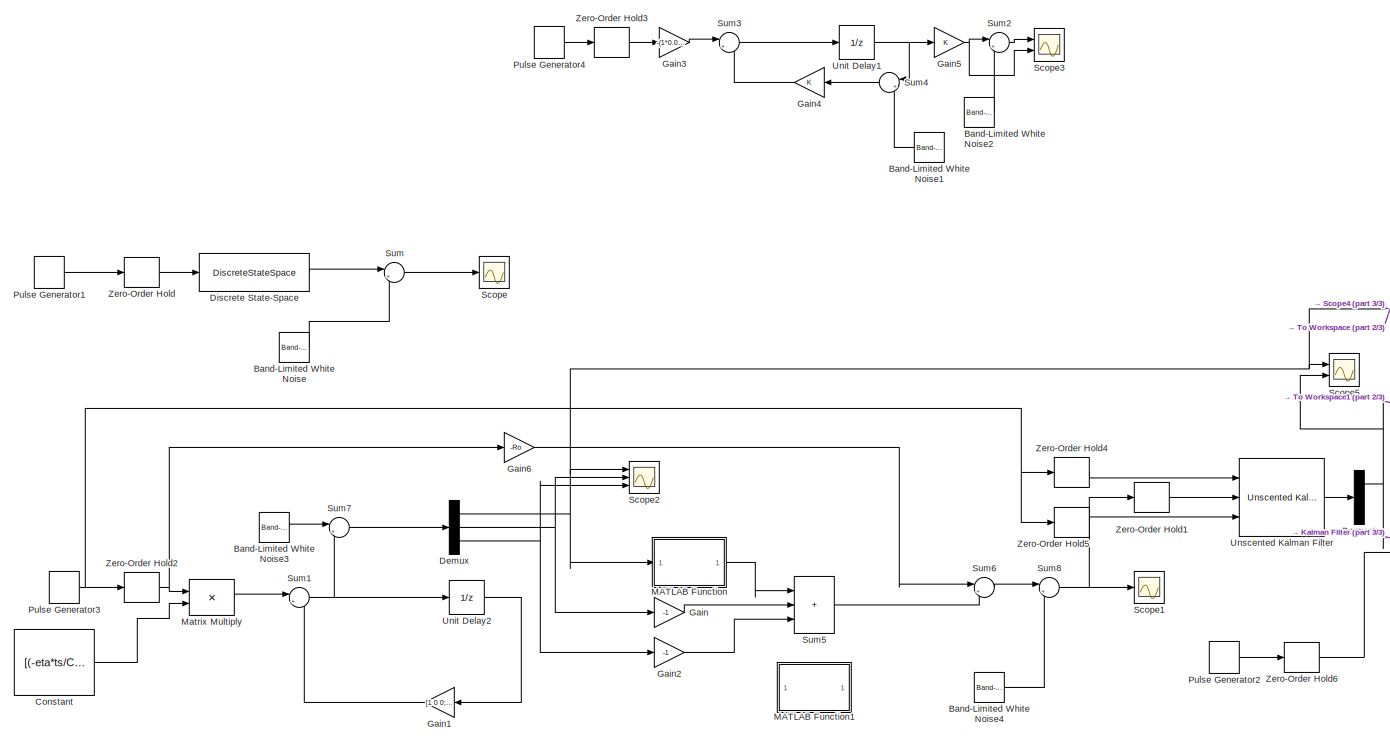
[diagram: root canvas - part 1/3, center side, full height]
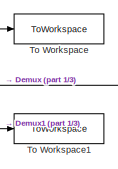
[diagram: root canvas - part 2/3, middle right region]
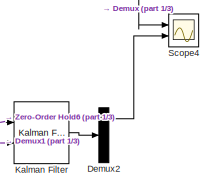
[diagram: root canvas - part 3/3, middle right region]
MODEL slx_b08c119ee102
KIND model
CONFIG AbsTol = auto
CONFIG EnableMultiTasking = off
CONFIG FixedStep = auto
CONFIG MaxStep = auto
CONFIG MinStep = auto
CONFIG RelTol = 1e-3
CONFIG SampleTimeConstraint = Unconstrained
CONFIG SolverName = VariableStepAuto
CONFIG StartTime = 0.0
CONFIG StopTime = 120002
BLOCK [Reference] Band-Limited White Noise  REF=simulink/Sources/Band-Limited
White Noise
  Ports = [0, 1]
  SourceBlock = simulink/Sources/Band-Limited\nWhite Noise
  SourceProductBaseCode = SL
  SourceType = Band-Limited White Noise.
BLOCK [Reference] Band-Limited White Noise1  REF=simulink/Sources/Band-Limited
White Noise
  Ports = [0, 1]
  SourceBlock = simulink/Sources/Band-Limited\nWhite Noise
  SourceProductBaseCode = SL
  SourceType = Band-Limited White Noise.
BLOCK [Reference] Band-Limited White Noise2  REF=simulink/Sources/Band-Limited
White Noise
  Ports = [0, 1]
  SourceBlock = simulink/Sources/Band-Limited\nWhite Noise
  SourceProductBaseCode = SL
  SourceType = Band-Limited White Noise.
BLOCK [Reference] Band-Limited White Noise3  REF=simulink/Sources/Band-Limited
White Noise
  Ports = [0, 1]
  SourceBlock = simulink/Sources/Band-Limited\nWhite Noise
  SourceProductBaseCode = SL
  SourceType = Band-Limited White Noise.
BLOCK [Reference] Band-Limited White Noise4  REF=simulink/Sources/Band-Limited
White Noise
  Ports = [0, 1]
  SourceBlock = simulink/Sources/Band-Limited\nWhite Noise
  SourceProductBaseCode = SL
  SourceType = Band-Limited White Noise.
BLOCK [Constant] Constant
  Value = [(-eta*ts/CN) (Rp*(1-exp(-ts/tau_p))) (Rs*(1-exp(-ts/tau_s)))]'
BLOCK [Demux] Demux
  Outputs = 3
  Ports = [1, 3]
BLOCK [Demux] Demux1
  Outputs = 3
  Ports = [1, 3]
BLOCK [Demux] Demux2
  Ports = [1, 4]
BLOCK [DiscreteStateSpace] Discrete State-Space
  B = -(1*0.01)/3000
  D = 0
  InitialCondition = 1
BLOCK [Gain] Gain
  Gain = -1
BLOCK [Gain] Gain1
  Gain = [1 0 0; 0 exp(-ts/tau_p) 0; 0 0 exp(-ts/tau_s)]
  Multiplication = Matrix(K*u) (u vector)
BLOCK [Gain] Gain2
  Gain = -1
BLOCK [Gain] Gain3
  Gain = -(1*0.01)/3000
BLOCK [Gain] Gain4
BLOCK [Gain] Gain5
BLOCK [Gain] Gain6
  Gain = -Ro
BLOCK [Reference] Kalman Filter  REF=ctrlSharedLib/Kalman Filter
  Ports = [2, 1]
  SourceBlock = ctrlSharedLib/Kalman Filter
  SourceProductBaseCode = CT,ID
  SourceType = ctrlKalmanFilter
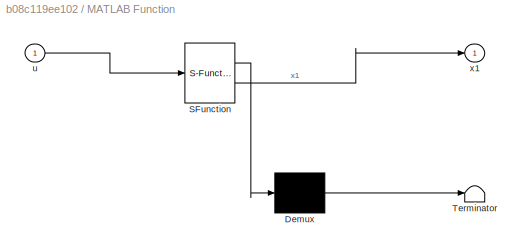
BLOCK [SubSystem] MATLAB Function
  ErrorFcn = Stateflow.Translate.translate
  PermitHierarchicalResolution = ExplicitOnly
  Ports = [1, 1]
  RequestExecContextInheritance = off
  SFBlockType = MATLAB Function
  TreatAsAtomicUnit = on
BLOCK [Demux] MATLAB Function/ Demux 
  Outputs = 1
  Ports = [1, 1]
BLOCK [S-Function] MATLAB Function/ SFunction 
  EnableBusSupport = on
  FunctionName = sf_sfun
  PortCounts = [1 2]
  Ports = [1, 2]
  SFcnIsStateOwnerBlock = off
  SFunctionDeploymentMode = off
  Tag = Stateflow S-Function 2
BLOCK [Terminator] MATLAB Function/ Terminator 
BLOCK [Inport] MATLAB Function/u
BLOCK [Outport] MATLAB Function/x1
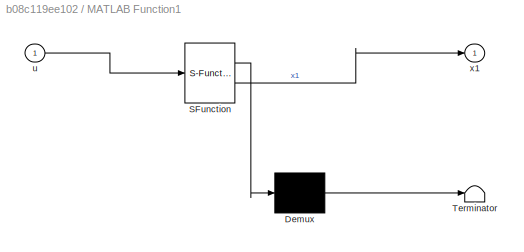
BLOCK [SubSystem] MATLAB Function1
  ErrorFcn = Stateflow.Translate.translate
  PermitHierarchicalResolution = ExplicitOnly
  Ports = [1, 1]
  RequestExecContextInheritance = off
  SFBlockType = MATLAB Function
  TreatAsAtomicUnit = on
BLOCK [Demux] MATLAB Function1/ Demux 
  Outputs = 1
  Ports = [1, 1]
BLOCK [S-Function] MATLAB Function1/ SFunction 
  EnableBusSupport = on
  FunctionName = sf_sfun
  PortCounts = [1 2]
  Ports = [1, 2]
  SFcnIsStateOwnerBlock = off
  SFunctionDeploymentMode = off
  Tag = Stateflow S-Function 1
BLOCK [Terminator] MATLAB Function1/ Terminator 
BLOCK [Inport] MATLAB Function1/u
BLOCK [Outport] MATLAB Function1/x1
BLOCK [Product] Matrix Multiply
  Ports = [2, 1]
BLOCK [DiscretePulseGenerator] Pulse Generator1
  Amplitude = 25
  Period = 5000
  Ports = [0, 1]
  PulseType = Time based
  PulseWidth = 10
BLOCK [DiscretePulseGenerator] Pulse Generator2
  Amplitude = 25
  Period = 5000
  Ports = [0, 1]
  PulseType = Time based
  PulseWidth = 10
BLOCK [DiscretePulseGenerator] Pulse Generator3
  Amplitude = 25
  Period = 5000
  Ports = [0, 1]
  PulseType = Time based
  PulseWidth = 10
BLOCK [DiscretePulseGenerator] Pulse Generator4
  Amplitude = 25
  Period = 5000
  Ports = [0, 1]
  PulseType = Time based
  PulseWidth = 10
BLOCK [Scope] Scope
  Floating = off
  NumInputPorts = 1
  Ports = [1]
  ScopeSpecificationString = Simulink.scopes.TimeScopeBlockCfg('CurrentConfiguration', extmgr.ConfigurationSet(extmgr.Configuration('Core','General UI',true),extmgr.Configuration('Core','Source UI',true),extmgr.Configuration('Sources','WiredSimulink',true),extmgr.Configuration('Visuals','Time Domain',true,'SerializedDisplays',{struct('MinYLimReal','0.71491','MaxYLimReal','1.03424','YLabelReal','','MinYLimMag','0.71491','MaxYL...<+1321ch>
BLOCK [Scope] Scope1
  Floating = off
  NumInputPorts = 1
  Ports = [1]
  ScopeSpecificationString = Simulink.scopes.TimeScopeBlockCfg('CurrentConfiguration', extmgr.ConfigurationSet(extmgr.Configuration('Core','General UI',true),extmgr.Configuration('Core','Source UI',true),extmgr.Configuration('Sources','WiredSimulink',true,'DataLoggingVariableName','ScopeData1'),extmgr.Configuration('Visuals','Time Domain',true,'SerializedDisplays',{struct('MinYLimReal','0.53891','MaxYLimReal','4.58006','YLabe...<+1403ch>
BLOCK [Scope] Scope2
  Floating = off
  NumInputPorts = 3
  Ports = [3]
  ScopeSpecificationString = Simulink.scopes.TimeScopeBlockCfg('CurrentConfiguration', extmgr.ConfigurationSet(extmgr.Configuration('Core','General UI',true),extmgr.Configuration('Core','Source UI',true),extmgr.Configuration('Sources','WiredSimulink',true,'DataLoggingVariableName','ScopeData2'),extmgr.Configuration('Visuals','Time Domain',true,'SerializedDisplays',{struct('MinYLimReal','-0.1255','MaxYLimReal','1.12514','YLabe...<+1439ch>
BLOCK [Scope] Scope3
  Floating = off
  NumInputPorts = 2
  Ports = [2]
  ScopeSpecificationString = Simulink.scopes.TimeScopeBlockCfg('CurrentConfiguration', extmgr.ConfigurationSet(extmgr.Configuration('Core','General UI',true),extmgr.Configuration('Core','Source UI',true),extmgr.Configuration('Sources','WiredSimulink',true,'DataLoggingVariableName','ScopeData3'),extmgr.Configuration('Visuals','Time Domain',true,'SerializedDisplays',{struct('MinYLimReal','-0.16039','MaxYLimReal','1.12914','YLab...<+1370ch>
BLOCK [Scope] Scope4
  Floating = off
  NumInputPorts = 2
  Ports = [2]
  ScopeSpecificationString = Simulink.scopes.TimeScopeBlockCfg('CurrentConfiguration', extmgr.ConfigurationSet(extmgr.Configuration('Core','General UI',true),extmgr.Configuration('Core','Source UI',true),extmgr.Configuration('Sources','WiredSimulink',true,'DataLoggingVariableName','ScopeData1'),extmgr.Configuration('Visuals','Time Domain',true,'SerializedDisplays',{struct('MinYLimReal','-1.19454','MaxYLimReal','10.76445','YLa...<+1381ch>
BLOCK [Scope] Scope5
  Floating = off
  NumInputPorts = 2
  Ports = [2]
  ScopeSpecificationString = Simulink.scopes.TimeScopeBlockCfg('CurrentConfiguration', extmgr.ConfigurationSet(extmgr.Configuration('Core','General UI',true),extmgr.Configuration('Core','Source UI',true),extmgr.Configuration('Sources','WiredSimulink',true,'DataLoggingVariableName','ScopeData1'),extmgr.Configuration('Visuals','Time Domain',true,'SerializedDisplays',{struct('MinYLimReal','0.61915','MaxYLimReal','1.04685','YLabe...<+1375ch>
BLOCK [Sum] Sum
  Inputs = |++
  Ports = [2, 1]
BLOCK [Sum] Sum1
  Inputs = |++
  Ports = [2, 1]
BLOCK [Sum] Sum2
  Inputs = |++
  Ports = [2, 1]
BLOCK [Sum] Sum3
  Inputs = |++
  Ports = [2, 1]
BLOCK [Sum] Sum4
  Inputs = |++
  Ports = [2, 1]
BLOCK [Sum] Sum5
  IconShape = rectangular
  Inputs = |+++
  Ports = [3, 1]
BLOCK [Sum] Sum6
  Inputs = |++
  Ports = [2, 1]
BLOCK [Sum] Sum7
  Inputs = |++
  Ports = [2, 1]
BLOCK [Sum] Sum8
  Inputs = |++
  Ports = [2, 1]
BLOCK [ToWorkspace] To Workspace
  FixptAsFi = on
  MaxDataPoints = inf
  Ports = [1]
  SampleTime = -1
  VariableName = SOCReal
BLOCK [ToWorkspace] To Workspace1
  FixptAsFi = on
  MaxDataPoints = inf
  Ports = [1]
  SampleTime = -1
  VariableName = SOCEst
BLOCK [UnitDelay] Unit Delay1
  HasFrameUpgradeWarning = on
  InitialCondition = 1
BLOCK [UnitDelay] Unit Delay2
  HasFrameUpgradeWarning = on
  InitialCondition = [1 0 0]'
BLOCK [Reference] Unscented Kalman Filter  REF=sharedTrackingLibrary/Unscented Kalman Filter
  Ports = [3, 1]
  SourceBlock = sharedTrackingLibrary/Unscented Kalman Filter
  SourceProductBaseCode = CT,DR,TF,ID,LP,NV,AR,RO,RR,UV,VE
  SourceType = Unscented Kalman Filter
BLOCK [ZeroOrderHold] Zero-Order Hold
BLOCK [ZeroOrderHold] Zero-Order Hold1
BLOCK [ZeroOrderHold] Zero-Order Hold2
BLOCK [ZeroOrderHold] Zero-Order Hold3
BLOCK [ZeroOrderHold] Zero-Order Hold4
BLOCK [ZeroOrderHold] Zero-Order Hold5
BLOCK [ZeroOrderHold] Zero-Order Hold6
LINE Band-Limited White Noise1:1 -> Sum4:2
LINE Band-Limited White Noise2:1 -> Sum2:2
LINE Band-Limited White Noise3:1 -> Sum7:1
LINE Band-Limited White Noise4:1 -> Sum8:2
LINE Band-Limited White Noise:1 -> Sum:2
LINE Constant:1 -> Matrix Multiply:2
NET Demux1:1 -> Kalman Filter:2, Scope5:2, To Workspace1:1
LINE Demux2:1 -> Scope4:2
NET Demux:1 -> MATLAB Function:1, Scope2:1, Scope4:1, Scope5:1, To Workspace:1
NET Demux:2 -> Gain:1, Scope2:2
NET Demux:3 -> Gain2:1, Scope2:3
LINE Discrete State-Space:1 -> Sum:1
LINE Gain1:1 -> Sum1:2
LINE Gain2:1 -> Sum5:3
LINE Gain3:1 -> Sum3:1
LINE Gain4:1 -> Sum3:2
NET Gain5:1 -> Scope3:2, Sum2:1
LINE Gain6:1 -> Sum6:1
LINE Gain:1 -> Sum5:2
LINE Kalman Filter:1 -> Demux2:1
LINE MATLAB Function:1 -> Sum5:1
LINE Matrix Multiply:1 -> Sum1:1
LINE Pulse Generator1:1 -> Zero-Order Hold:1
LINE Pulse Generator2:1 -> Zero-Order Hold6:1
NET Pulse Generator3:1 -> Zero-Order Hold2:1, Zero-Order Hold4:1, Zero-Order Hold5:1
LINE Pulse Generator4:1 -> Zero-Order Hold3:1
NET Sum1:1 -> Sum7:2, Unit Delay2:1
LINE Sum2:1 -> Scope3:1
LINE Sum3:1 -> Unit Delay1:1
LINE Sum4:1 -> Gain4:1
LINE Sum5:1 -> Sum6:2
LINE Sum6:1 -> Sum8:1
LINE Sum7:1 -> Demux:1
NET Sum8:1 -> Scope1:1, Zero-Order Hold1:1
LINE Sum:1 -> Scope:1
NET Unit Delay1:1 -> Gain5:1, Sum4:1
LINE Unit Delay2:1 -> Gain1:1
LINE Unscented Kalman Filter:1 -> Demux1:1
LINE Zero-Order Hold1:1 -> Unscented Kalman Filter:2
NET Zero-Order Hold2:1 -> Gain6:1, Matrix Multiply:1
LINE Zero-Order Hold3:1 -> Gain3:1
LINE Zero-Order Hold4:1 -> Unscented Kalman Filter:1
LINE Zero-Order Hold5:1 -> Unscented Kalman Filter:3
LINE Zero-Order Hold6:1 -> Kalman Filter:1
LINE Zero-Order Hold:1 -> Discrete State-Space:1
note: NET lines group one-source signal fan-out (src -> all destinations, sorted); 1:1 wires keep LINE
CHART MATLAB Function states=1 transitions=1
  STATE_LABEL 'eML_blk_kernel()'
  STATE_LABEL 'SCRIPT:\nfunction x1 = fcn(u)\n\nx1 = 3.8194*u^6 - 4.6554*u^5 - 8.9009*u^4 + 19.3256*u^3 - 11.9564*u^2 + 3.291*u + 3.2518;\nend'
CHART MATLAB Function1 states=1 transitions=1
  STATE_LABEL 'eML_blk_kernel()'
  STATE_LABEL 'SCRIPT:\nfunction x1 = fcn(u)\n\nx1 = 0.7428*u+3.3613;\nend'
CHART  states=0 transitions=0
CHART  states=0 transitions=0
